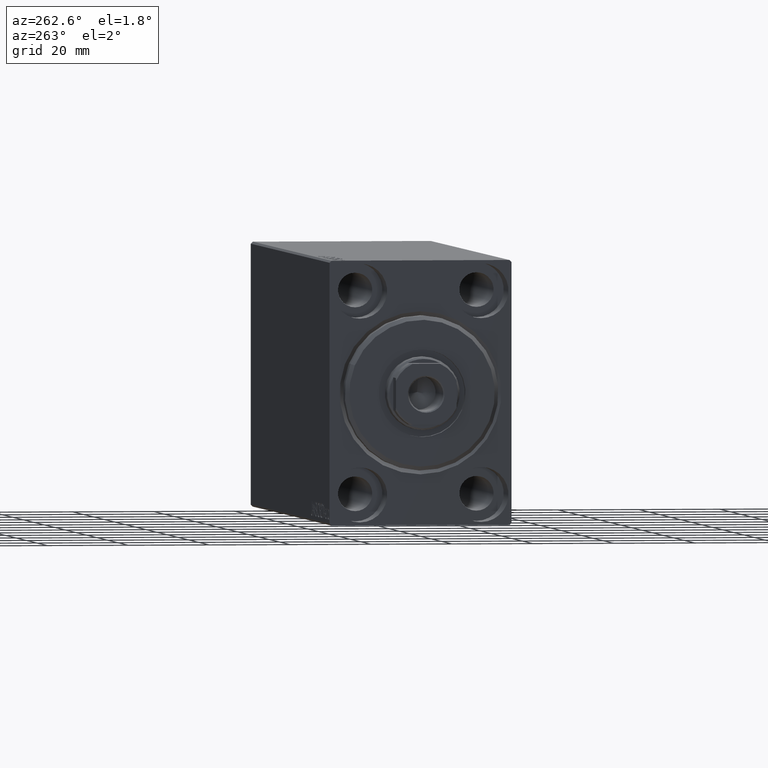
[diagram: clean part render]
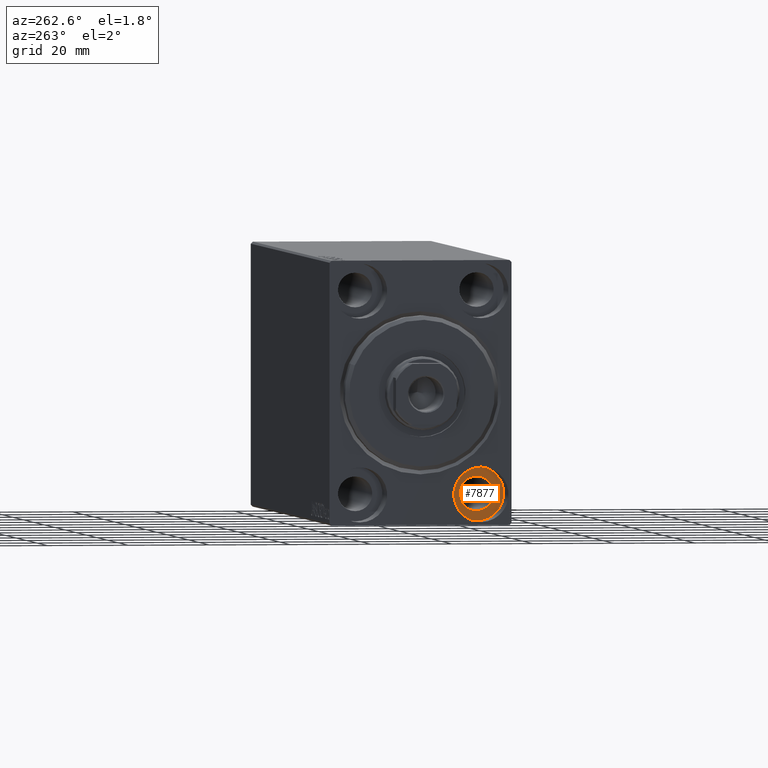
[diagram: same view with one face highlighted and labeled with its STEP entity id]
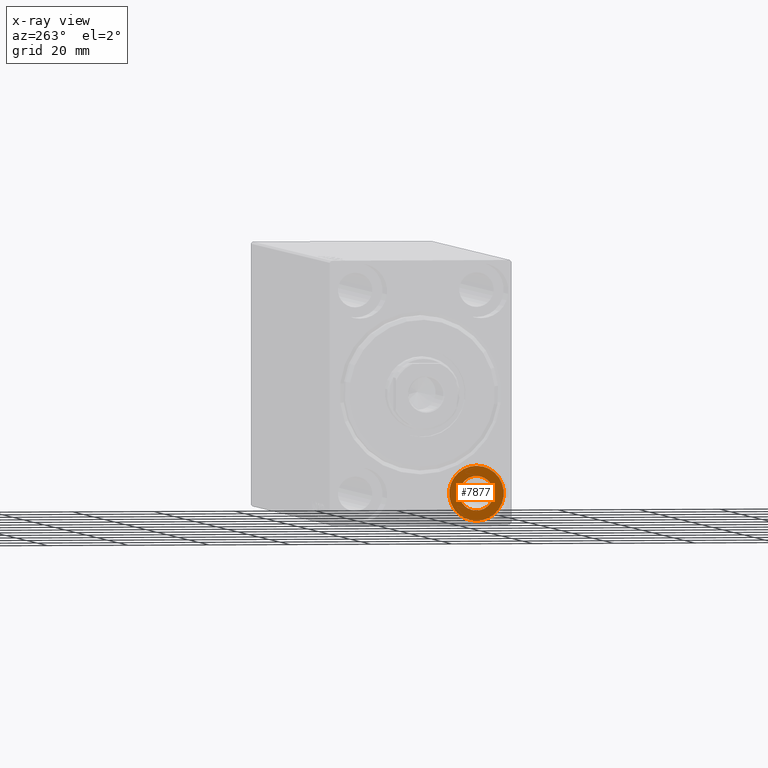
[diagram: x-ray of the same camera — body ghosted, the highlighted face saturated]
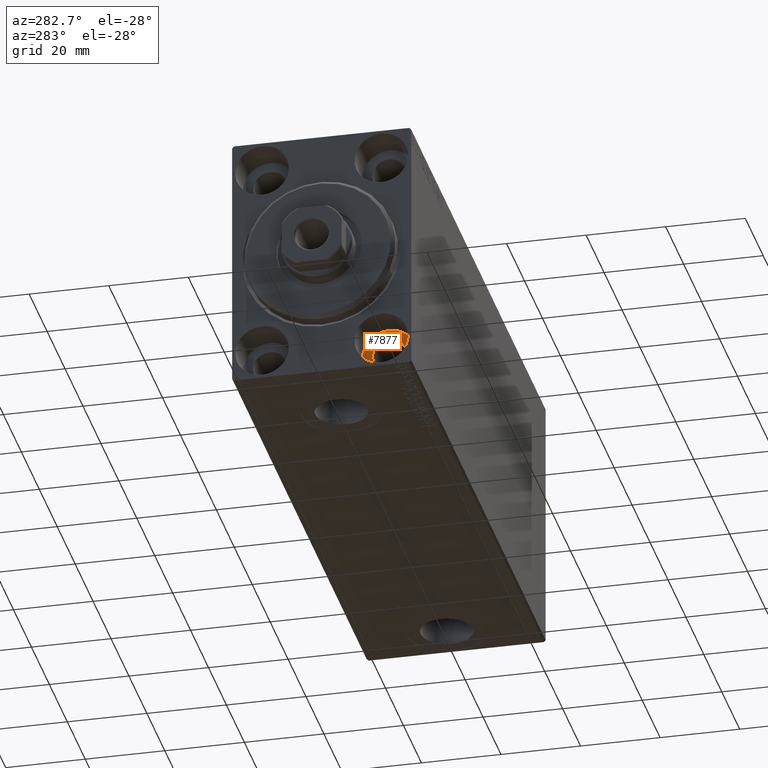
[diagram: same view with one face highlighted and labeled with its STEP entity id]
A machine part, auxiliary view. The second image highlights one B-rep face of the part: STEP entity #7877.
The next image is the same camera in x-ray: the body ghosted, the highlighted face saturated — about 0% of this face is hidden behind the body in this view.
A second angle (auxiliary view) of the same face is appended — the face is thin or edge-on in the first view.
In plain terms, the highlighted planar face has unit normal (-1, 0, 0).
Its self-contained STEP definition (entity closure, byte-faithful):
#744 = ORIENTED_EDGE ( 'NONE', *, *, #3839, .T. ) ;
#757 = EDGE_CURVE ( 'NONE', #24578, #4882, #32196, .T. ) ;
#1699 = DIRECTION ( 'NONE',  ( -1.000000000000000000, 0.000000000000000000, 0.000000000000000000 ) ) ;
#3053 = EDGE_CURVE ( 'NONE', #4882, #24578, #15813, .T. ) ;
#3839 = EDGE_CURVE ( 'NONE', #37284, #14472, #30725, .T. ) ;
#4882 = VERTEX_POINT ( 'NONE', #25731 ) ;
#5255 = CARTESIAN_POINT ( 'NONE',  ( 9.000000000000007105, -15.00000000000000355, -25.00000000000000000 ) ) ;
#5312 = AXIS2_PLACEMENT_3D ( 'NONE', #40558, #34091, #43468 ) ;
#5489 = DIRECTION ( 'NONE',  ( -1.000000000000000000, 0.000000000000000000, 0.000000000000000000 ) ) ;
#6670 = DIRECTION ( 'NONE',  ( 0.000000000000000000, 0.000000000000000000, 1.000000000000000000 ) ) ;
#7877 = ADVANCED_FACE ( 'NONE', ( #30090, #26751 ), #20520, .T. ) ;
#8431 = CARTESIAN_POINT ( 'NONE',  ( 9.000000000000000000, -15.00000000000000355, -31.75000000000000000 ) ) ;
#11568 = AXIS2_PLACEMENT_3D ( 'NONE', #25437, #11663, #31675 ) ;
#11663 = DIRECTION ( 'NONE',  ( -1.000000000000000000, 0.000000000000000000, 0.000000000000000000 ) ) ;
#11740 = ORIENTED_EDGE ( 'NONE', *, *, #12657, .T. ) ;
#12657 = EDGE_CURVE ( 'NONE', #14472, #37284, #19593, .T. ) ;
#12907 = ORIENTED_EDGE ( 'NONE', *, *, #757, .F. ) ;
#14472 = VERTEX_POINT ( 'NONE', #8431 ) ;
#15326 = AXIS2_PLACEMENT_3D ( 'NONE', #43725, #5489, #26154 ) ;
#15813 = CIRCLE ( 'NONE', #30006, 4.249999999999996447 ) ;
#19029 = EDGE_LOOP ( 'NONE', ( #22039, #12907 ) ) ;
#19593 = CIRCLE ( 'NONE', #15326, 6.749999999999999112 ) ;
#19646 = CARTESIAN_POINT ( 'NONE',  ( 9.000000000000000000, -15.00000000000000355, -18.25000000000000355 ) ) ;
#20520 = PLANE ( 'NONE',  #5312 ) ;
#21500 = DIRECTION ( 'NONE',  ( 0.000000000000000000, 0.000000000000000000, 1.000000000000000000 ) ) ;
#22039 = ORIENTED_EDGE ( 'NONE', *, *, #3053, .F. ) ;
#23646 = EDGE_LOOP ( 'NONE', ( #744, #11740 ) ) ;
#24578 = VERTEX_POINT ( 'NONE', #31137 ) ;
#25437 = CARTESIAN_POINT ( 'NONE',  ( 9.000000000000000000, -15.00000000000000355, -25.00000000000000000 ) ) ;
#25731 = CARTESIAN_POINT ( 'NONE',  ( 9.000000000000007105, -15.00000000000000355, -20.75000000000000355 ) ) ;
#26154 = DIRECTION ( 'NONE',  ( 0.000000000000000000, 0.000000000000000000, 1.000000000000000000 ) ) ;
#26751 = FACE_OUTER_BOUND ( 'NONE', #23646, .T. ) ;
#30006 = AXIS2_PLACEMENT_3D ( 'NONE', #37140, #30678, #6670 ) ;
#30090 = FACE_BOUND ( 'NONE', #19029, .T. ) ;
#30678 = DIRECTION ( 'NONE',  ( -1.000000000000000000, 0.000000000000000000, 0.000000000000000000 ) ) ;
#30725 = CIRCLE ( 'NONE', #11568, 6.749999999999999112 ) ;
#31137 = CARTESIAN_POINT ( 'NONE',  ( 9.000000000000007105, -15.00000000000000355, -29.25000000000000000 ) ) ;
#31675 = DIRECTION ( 'NONE',  ( 0.000000000000000000, 0.000000000000000000, 1.000000000000000000 ) ) ;
#32196 = CIRCLE ( 'NONE', #43584, 4.249999999999996447 ) ;
#34091 = DIRECTION ( 'NONE',  ( -1.000000000000000000, 0.000000000000000000, 0.000000000000000000 ) ) ;
#37140 = CARTESIAN_POINT ( 'NONE',  ( 9.000000000000007105, -15.00000000000000355, -25.00000000000000000 ) ) ;
#37284 = VERTEX_POINT ( 'NONE', #19646 ) ;
#40558 = CARTESIAN_POINT ( 'NONE',  ( 9.000000000000000000, 0.000000000000000000, 0.000000000000000000 ) ) ;
#43468 = DIRECTION ( 'NONE',  ( 0.000000000000000000, 0.000000000000000000, 1.000000000000000000 ) ) ;
#43584 = AXIS2_PLACEMENT_3D ( 'NONE', #5255, #1699, #21500 ) ;
#43725 = CARTESIAN_POINT ( 'NONE',  ( 9.000000000000000000, -15.00000000000000355, -25.00000000000000000 ) ) ;